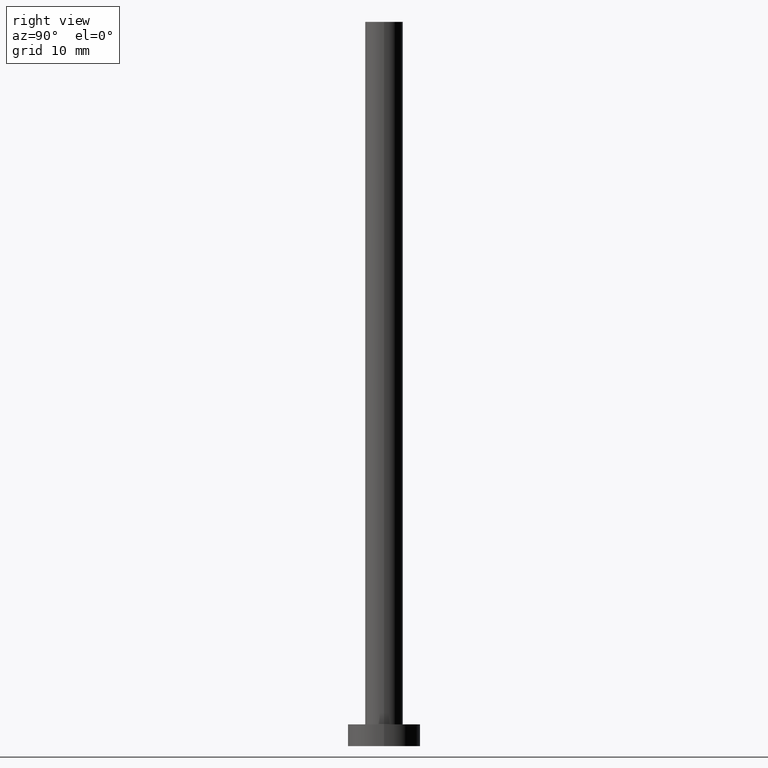
[diagram: clean part render]
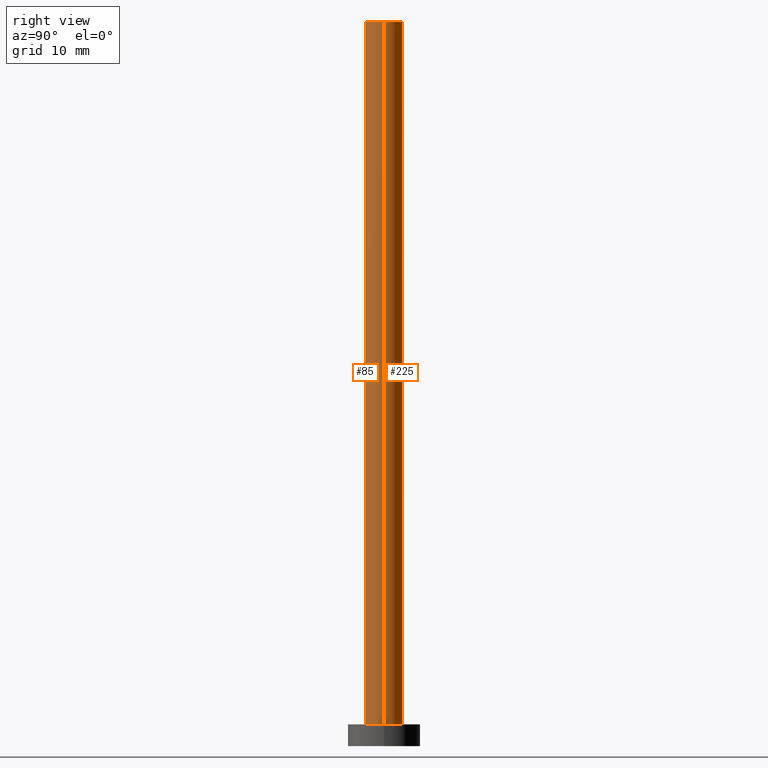
[diagram: same view with one multi-face feature highlighted, each face labeled with its STEP entity id]
A machine part, right view. The highlighted faces form ONE feature: a constant-radius fillet chain: 2 tangent blend faces with common blend radius 2.6 mm. The faces share edges in the B-rep.
Their STEP definitions:
[1] entity #225 (Cylinder):
#3 = CIRCLE ( 'NONE', #183, 2.600000000000000089 ) ;
#4 = VERTEX_POINT ( 'NONE', #167 ) ;
#11 = CARTESIAN_POINT ( 'NONE',  ( 0.000000000000000000, 0.000000000000000000, 100.0000000000000000 ) ) ;
#18 = EDGE_CURVE ( 'NONE', #4, #150, #3, .T. ) ;
#28 = DIRECTION ( 'NONE',  ( 0.000000000000000000, 0.000000000000000000, 1.000000000000000000 ) ) ;
#30 = CYLINDRICAL_SURFACE ( 'NONE', #140, 2.600000000000000089 ) ;
#42 = LINE ( 'NONE', #196, #191 ) ;
#45 = DIRECTION ( 'NONE',  ( -0.000000000000000000, -0.000000000000000000, -1.000000000000000000 ) ) ;
#46 = DIRECTION ( 'NONE',  ( 0.000000000000000000, 0.000000000000000000, 1.000000000000000000 ) ) ;
#52 = EDGE_CURVE ( 'NONE', #218, #150, #248, .T. ) ;
#66 = ORIENTED_EDGE ( 'NONE', *, *, #18, .T. ) ;
#68 = EDGE_CURVE ( 'NONE', #81, #4, #42, .T. ) ;
#69 = VECTOR ( 'NONE', #45, 1000.000000000000000 ) ;
#77 = DIRECTION ( 'NONE',  ( -1.000000000000000000, 0.000000000000000000, 0.000000000000000000 ) ) ;
#79 = ORIENTED_EDGE ( 'NONE', *, *, #52, .F. ) ;
#81 = VERTEX_POINT ( 'NONE', #125 ) ;
#90 = DIRECTION ( 'NONE',  ( 1.000000000000000000, 0.000000000000000000, 0.000000000000000000 ) ) ;
#96 = CARTESIAN_POINT ( 'NONE',  ( -2.600000000000000089, 0.000000000000000000, 3.000000000000000000 ) ) ;
#108 = CARTESIAN_POINT ( 'NONE',  ( 0.000000000000000000, 0.000000000000000000, 3.000000000000000000 ) ) ;
#114 = CIRCLE ( 'NONE', #143, 2.600000000000000089 ) ;
#125 = CARTESIAN_POINT ( 'NONE',  ( 2.600000000000000089, 3.184081677783117698E-16, 100.0000000000000000 ) ) ;
#140 = AXIS2_PLACEMENT_3D ( 'NONE', #186, #252, #77 ) ;
#143 = AXIS2_PLACEMENT_3D ( 'NONE', #11, #28, #90 ) ;
#150 = VERTEX_POINT ( 'NONE', #96 ) ;
#159 = EDGE_CURVE ( 'NONE', #81, #218, #114, .T. ) ;
#167 = CARTESIAN_POINT ( 'NONE',  ( 2.600000000000000089, 3.184081677783117698E-16, 3.000000000000000000 ) ) ;
#181 = ORIENTED_EDGE ( 'NONE', *, *, #159, .F. ) ;
#183 = AXIS2_PLACEMENT_3D ( 'NONE', #108, #46, #204 ) ;
#186 = CARTESIAN_POINT ( 'NONE',  ( 0.000000000000000000, 0.000000000000000000, 100.0000000000000000 ) ) ;
#191 = VECTOR ( 'NONE', #240, 1000.000000000000000 ) ;
#196 = CARTESIAN_POINT ( 'NONE',  ( 2.600000000000000089, 3.184081677783117698E-16, 100.0000000000000000 ) ) ;
#204 = DIRECTION ( 'NONE',  ( 1.000000000000000000, 0.000000000000000000, 0.000000000000000000 ) ) ;
#214 = FACE_OUTER_BOUND ( 'NONE', #232, .T. ) ;
#218 = VERTEX_POINT ( 'NONE', #233 ) ;
#225 = ADVANCED_FACE ( 'NONE', ( #214 ), #30, .T. ) ;
#227 = CARTESIAN_POINT ( 'NONE',  ( -2.600000000000000089, 0.000000000000000000, 100.0000000000000000 ) ) ;
#232 = EDGE_LOOP ( 'NONE', ( #181, #236, #66, #79 ) ) ;
#233 = CARTESIAN_POINT ( 'NONE',  ( -2.600000000000000089, 0.000000000000000000, 100.0000000000000000 ) ) ;
#236 = ORIENTED_EDGE ( 'NONE', *, *, #68, .T. ) ;
#240 = DIRECTION ( 'NONE',  ( -0.000000000000000000, -0.000000000000000000, -1.000000000000000000 ) ) ;
#248 = LINE ( 'NONE', #227, #69 ) ;
#252 = DIRECTION ( 'NONE',  ( -0.000000000000000000, -0.000000000000000000, -1.000000000000000000 ) ) ;
[2] entity #85 (Cylinder):
#4 = VERTEX_POINT ( 'NONE', #167 ) ;
#22 = CARTESIAN_POINT ( 'NONE',  ( 0.000000000000000000, 0.000000000000000000, 100.0000000000000000 ) ) ;
#42 = LINE ( 'NONE', #196, #191 ) ;
#45 = DIRECTION ( 'NONE',  ( -0.000000000000000000, -0.000000000000000000, -1.000000000000000000 ) ) ;
#52 = EDGE_CURVE ( 'NONE', #218, #150, #248, .T. ) ;
#56 = DIRECTION ( 'NONE',  ( 0.000000000000000000, 0.000000000000000000, 1.000000000000000000 ) ) ;
#59 = CARTESIAN_POINT ( 'NONE',  ( 0.000000000000000000, 0.000000000000000000, 3.000000000000000000 ) ) ;
#60 = EDGE_LOOP ( 'NONE', ( #155, #139, #153, #89 ) ) ;
#68 = EDGE_CURVE ( 'NONE', #81, #4, #42, .T. ) ;
#69 = VECTOR ( 'NONE', #45, 1000.000000000000000 ) ;
#70 = AXIS2_PLACEMENT_3D ( 'NONE', #59, #172, #170 ) ;
#78 = CIRCLE ( 'NONE', #135, 2.600000000000000089 ) ;
#81 = VERTEX_POINT ( 'NONE', #125 ) ;
#84 = FACE_OUTER_BOUND ( 'NONE', #60, .T. ) ;
#85 = ADVANCED_FACE ( 'NONE', ( #84 ), #178, .T. ) ;
#86 = DIRECTION ( 'NONE',  ( -0.000000000000000000, -0.000000000000000000, -1.000000000000000000 ) ) ;
#89 = ORIENTED_EDGE ( 'NONE', *, *, #215, .T. ) ;
#96 = CARTESIAN_POINT ( 'NONE',  ( -2.600000000000000089, 0.000000000000000000, 3.000000000000000000 ) ) ;
#125 = CARTESIAN_POINT ( 'NONE',  ( 2.600000000000000089, 3.184081677783117698E-16, 100.0000000000000000 ) ) ;
#128 = DIRECTION ( 'NONE',  ( -1.000000000000000000, 0.000000000000000000, 0.000000000000000000 ) ) ;
#129 = CARTESIAN_POINT ( 'NONE',  ( 0.000000000000000000, 0.000000000000000000, 100.0000000000000000 ) ) ;
#135 = AXIS2_PLACEMENT_3D ( 'NONE', #129, #56, #203 ) ;
#139 = ORIENTED_EDGE ( 'NONE', *, *, #180, .F. ) ;
#144 = CIRCLE ( 'NONE', #70, 2.600000000000000089 ) ;
#150 = VERTEX_POINT ( 'NONE', #96 ) ;
#153 = ORIENTED_EDGE ( 'NONE', *, *, #52, .T. ) ;
#155 = ORIENTED_EDGE ( 'NONE', *, *, #68, .F. ) ;
#167 = CARTESIAN_POINT ( 'NONE',  ( 2.600000000000000089, 3.184081677783117698E-16, 3.000000000000000000 ) ) ;
#170 = DIRECTION ( 'NONE',  ( 1.000000000000000000, 0.000000000000000000, 0.000000000000000000 ) ) ;
#172 = DIRECTION ( 'NONE',  ( 0.000000000000000000, 0.000000000000000000, 1.000000000000000000 ) ) ;
#178 = CYLINDRICAL_SURFACE ( 'NONE', #197, 2.600000000000000089 ) ;
#180 = EDGE_CURVE ( 'NONE', #218, #81, #78, .T. ) ;
#191 = VECTOR ( 'NONE', #240, 1000.000000000000000 ) ;
#196 = CARTESIAN_POINT ( 'NONE',  ( 2.600000000000000089, 3.184081677783117698E-16, 100.0000000000000000 ) ) ;
#197 = AXIS2_PLACEMENT_3D ( 'NONE', #22, #86, #128 ) ;
#203 = DIRECTION ( 'NONE',  ( 1.000000000000000000, 0.000000000000000000, 0.000000000000000000 ) ) ;
#215 = EDGE_CURVE ( 'NONE', #150, #4, #144, .T. ) ;
#218 = VERTEX_POINT ( 'NONE', #233 ) ;
#227 = CARTESIAN_POINT ( 'NONE',  ( -2.600000000000000089, 0.000000000000000000, 100.0000000000000000 ) ) ;
#233 = CARTESIAN_POINT ( 'NONE',  ( -2.600000000000000089, 0.000000000000000000, 100.0000000000000000 ) ) ;
#240 = DIRECTION ( 'NONE',  ( -0.000000000000000000, -0.000000000000000000, -1.000000000000000000 ) ) ;
#248 = LINE ( 'NONE', #227, #69 ) ;